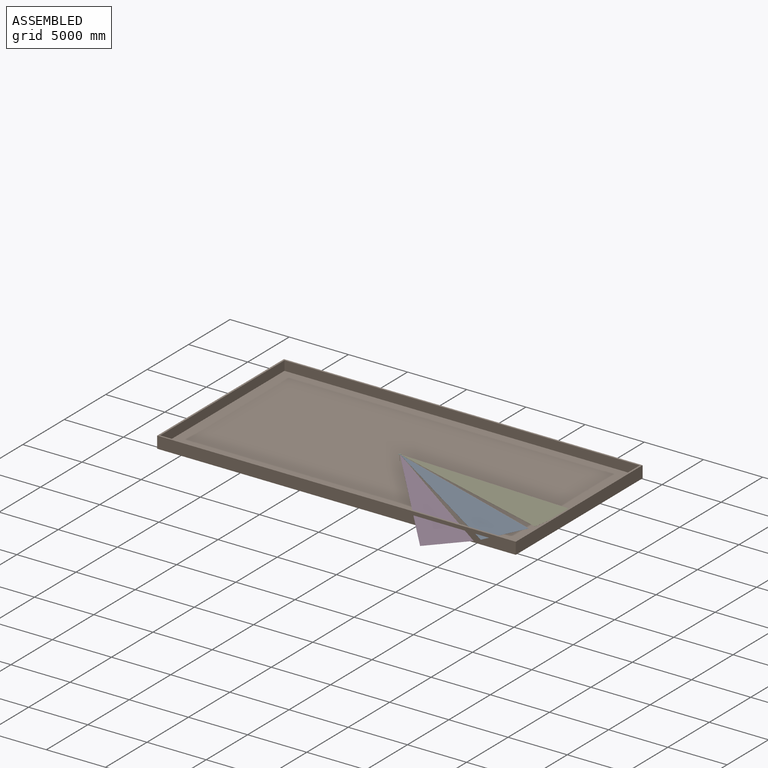
[diagram: assembled view]
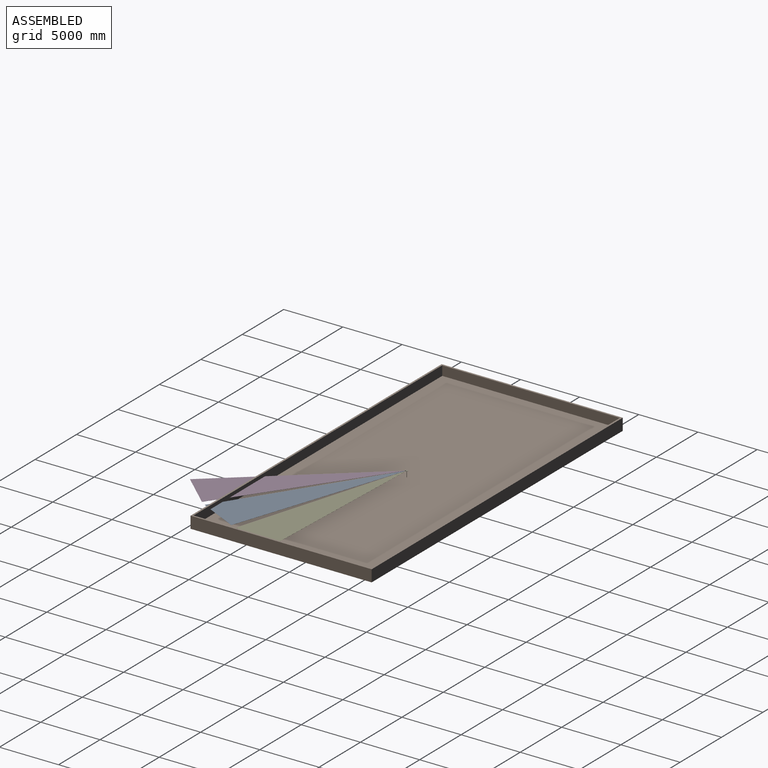
[diagram: assembled view, second angle]
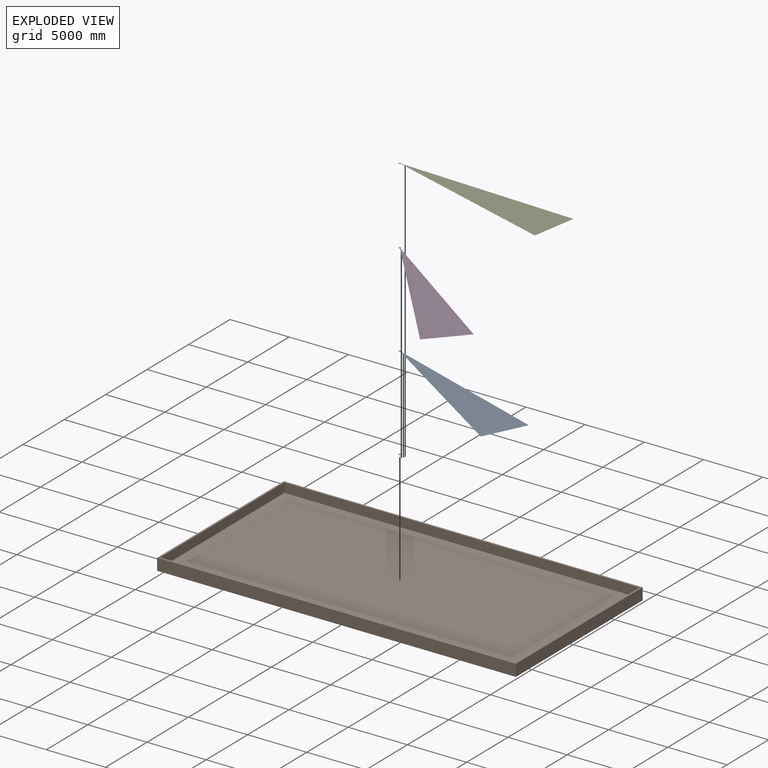
[diagram: exploded view]
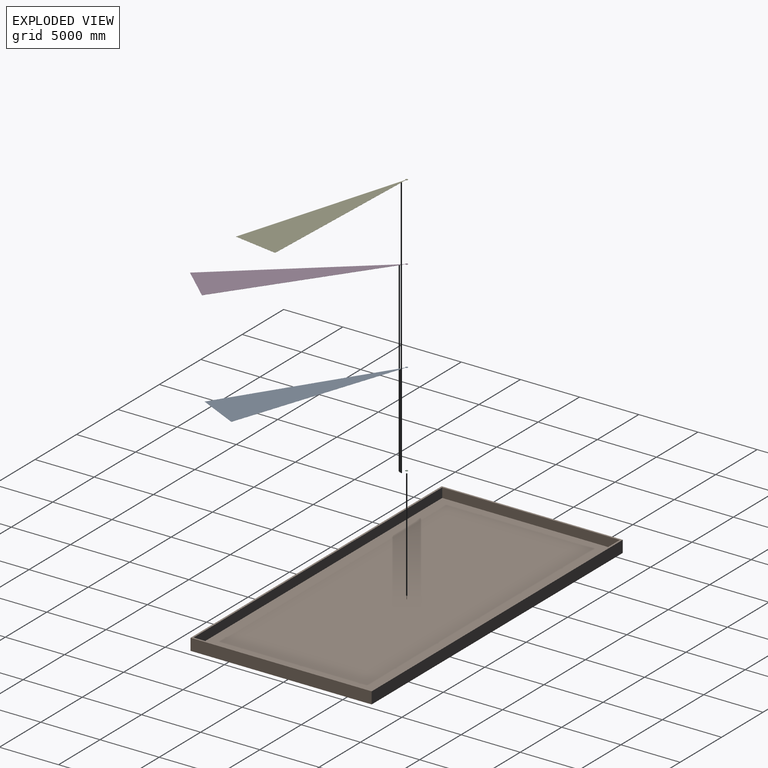
[diagram: exploded view, second angle]
ASSEMBLY  parts=5 mates=4
PART A: 19 faces, bbox 14371.4x8344x5 mm
  f0: plane 14209.56x4805.03mm, normal (0.32,0.95,0), area 75000mm2, adj f1,f15,f17,f18
  f1: cylinder r=60mm len=5mm, axis (0,0,-1), area 11.4mm2, adj f0,f2,f17,f18
  f2: plane 43.15x12.78mm, normal (-0.28,-0.96,0), area 225mm2, adj f1,f3,f17,f18
  f3: cylinder r=105mm len=210mm, axis (0,0,-1), area 2820.5mm2, adj f2,f4,f17,f18
  f4: plane 41.92x16.36mm, normal (0.93,0.36,0), area 225mm2, adj f3,f5,f17,f18
  f5: cylinder r=60mm len=5mm, axis (0,0,-1), area 11.4mm2, adj f4,f6,f17,f18
  f6: plane 41.27x17.94mm, normal (-0.92,-0.4,0), area 225mm2, adj f5,f7,f17,f18
  f7: cylinder r=105mm len=22.75mm, axis (0,0,-1), area 132.7mm2, adj f6,f8,f17,f18
  f8: plane 35.47x27.69mm, normal (0.79,0.62,0), area 225mm2, adj f7,f9,f17,f18
  f9: cylinder r=60mm len=5mm, axis (0,0,-1), area 11.4mm2, adj f8,f10,f17,f18
  f10: plane 34.39x29.03mm, normal (-0.76,-0.65,0), area 225mm2, adj f9,f11,f17,f18
  f11: cylinder r=105mm len=19.49mm, axis (0,0,-1), area 132.7mm2, adj f10,f12,f17,f18
  f12: plane 36.7x26.04mm, normal (0.58,0.82,0), area 225mm2, adj f11,f13,f17,f18
  f13: cylinder r=60mm len=5mm, axis (0,0,-1), area 11.4mm2, adj f12,f14,f17,f18
  f14: plane 12556.24x8206.15mm, normal (-0.55,-0.84,0), area 75000mm2, adj f13,f15,f17,f18
  f15: plane 3414.71x1659.93mm, normal (0.9,-0.44,0), area 18984mm2, adj f0,f14,f17,f18
  f16: cylinder r=12.5mm len=25mm, axis (0,0,-1), area 392.7mm2, adj f17,f18
  f17: plane 14371.4x8343.97mm, normal (0,0,1), area 28393999.6mm2, adj f0,f1,f2,f3,f4,f5,f6,f7
  f18: plane 14371.4x8343.97mm, normal (0,0,-1), area 28393999.6mm2, adj f0,f1,f2,f3,f4,f5,f6,f7
PART B: 13 faces, bbox 30300x15300x1000 mm
  f0: plane 30300x15300mm, normal (0,0,-1), area 463590000mm2, adj f5,f6,f7,f8
  f1: plane 30000x800mm, normal (0,1,0), area 24000000mm2, adj f2,f4,f9,f10
  f2: plane 15000x800mm, normal (-1,0,0), area 12000000mm2, adj f1,f3,f9,f10
  f3: plane 30000x800mm, normal (0,-1,0), area 24000000mm2, adj f2,f4,f9,f10
  f4: plane 15000x800mm, normal (1,0,0), area 12000000mm2, adj f1,f3,f9,f10
  f5: plane 15300x1000mm, normal (-1,0,0), area 15300000mm2, adj f0,f6,f8,f9
  f6: plane 30300x1000mm, normal (0,-1,0), area 30300000mm2, adj f0,f5,f7,f9
  f7: plane 15300x1000mm, normal (1,0,0), area 15300000mm2, adj f0,f6,f8,f9
  f8: plane 30300x1000mm, normal (0,1,0), area 30300000mm2, adj f0,f5,f7,f9
  f9: plane 30300x15300mm, normal (0,0,1), area 13590000mm2, adj f1,f2,f3,f4,f5,f6,f7,f8
  f10: plane 30000x15000mm, normal (0,0,1), area 449999509.1mm2, adj f1,f2,f3,f4,f11
  f11: cylinder r=12.5mm len=500mm, axis (0,0,-1), area 39269.9mm2, adj f10,f12
  f12: plane 25x25mm, normal (0,0,1), area 490.9mm2, adj f11
PART C: 20 faces, bbox 210x210x18 mm
  f0: plane 210x210mm, normal (0,0,1), area 33579.3mm2, adj f1,f2,f4,f5,f6,f8,f9,f10
  f1: cylinder r=12.5mm len=25mm, axis (0,0,-1), area 628.3mm2, adj f0,f3
  f2: cylinder r=105mm len=210mm, axis (0,0,-1), area 5437.9mm2, adj f0,f3,f4,f6,f7,f9,f10,f11
  f3: plane 210x210mm, normal (0,0,-1), area 34145.2mm2, adj f1,f2
  f4: plane 45x10mm, normal (0,1,0), area 450mm2, adj f0,f2,f5,f7
  f5: cylinder r=60mm len=10mm, axis (0,0,-1), area 22.9mm2, adj f0,f4,f6,f7
  f6: plane 44.97x10mm, normal (-0.04,-1,0), area 450mm2, adj f0,f2,f5,f7
  f7: plane 45.04x4mm, normal (0,0,1), area 141.5mm2, adj f2,f4,f5,f6
  f8: cylinder r=60mm len=10mm, axis (0,0,-1), area 22.9mm2, adj f0,f9,f10,f11
  f9: plane 42.59x14.54mm, normal (-0.32,-0.95,0), area 450mm2, adj f0,f2,f8,f11
  f10: plane 43.11x12.91mm, normal (0.29,0.96,0), area 450mm2, adj f0,f2,f8,f11
  f11: plane 43.81x16.72mm, normal (0,0,1), area 141.5mm2, adj f2,f8,f9,f10
  f12: cylinder r=60mm len=10mm, axis (0,0,-1), area 22.9mm2, adj f0,f13,f14,f15
  f13: plane 36.63x26.14mm, normal (-0.58,-0.81,0), area 450mm2, adj f0,f2,f12,f15
  f14: plane 37.6x24.73mm, normal (0.55,0.84,0), area 450mm2, adj f0,f2,f12,f15
  f15: plane 38.89x28.03mm, normal (0,0,1), area 141.5mm2, adj f2,f12,f13,f14
  f16: cylinder r=60mm len=10mm, axis (0,0,-1), area 22.9mm2, adj f0,f17,f18,f19
  f17: plane 35.55x27.59mm, normal (-0.79,-0.61,0), area 450mm2, adj f0,f2,f16,f19
  f18: plane 34.47x28.93mm, normal (0.77,0.64,0), area 450mm2, adj f0,f2,f16,f19
  f19: plane 36.98x30.7mm, normal (0,0,1), area 141.5mm2, adj f2,f16,f17,f18
PART D: 19 faces, bbox 12413.7x11585.1x5 mm
  f0: plane 12259.7x8642.9mm, normal (0.58,0.82,0), area 75000mm2, adj f1,f15,f17,f18
  f1: cylinder r=60mm len=5mm, axis (0,0,-1), area 11.4mm2, adj f0,f2,f17,f18
  f2: plane 37.74x24.51mm, normal (-0.54,-0.84,0), area 225mm2, adj f1,f3,f17,f18
  f3: cylinder r=105mm len=210mm, axis (0,0,-1), area 2820.5mm2, adj f2,f4,f17,f18
  f4: plane 44.84x5mm, normal (1,0.08,0), area 225mm2, adj f3,f5,f17,f18
  f5: cylinder r=60mm len=5mm, axis (0,0,-1), area 11.4mm2, adj f4,f6,f17,f18
  f6: plane 44.66x5.48mm, normal (-0.99,-0.12,0), area 225mm2, adj f5,f7,f17,f18
  f7: cylinder r=105mm len=25.66mm, axis (0,0,-1), area 132.7mm2, adj f6,f8,f17,f18
  f8: plane 41.87x16.48mm, normal (0.93,0.37,0), area 225mm2, adj f7,f9,f17,f18
  f9: cylinder r=60mm len=5mm, axis (0,0,-1), area 11.4mm2, adj f8,f10,f17,f18
  f10: plane 41.22x18.06mm, normal (-0.92,-0.4,0), area 225mm2, adj f9,f11,f17,f18
  f11: cylinder r=105mm len=22.71mm, axis (0,0,-1), area 132.7mm2, adj f10,f12,f17,f18
  f12: plane 35.39x27.8mm, normal (0.79,0.62,0), area 225mm2, adj f11,f13,f17,f18
  f13: cylinder r=60mm len=5mm, axis (0,0,-1), area 11.4mm2, adj f12,f14,f17,f18
  f14: plane 11434.38x9708.5mm, normal (-0.76,-0.65,0), area 75000mm2, adj f13,f15,f17,f18
  f15: plane 2802.65x2561.41mm, normal (0.74,-0.67,0), area 18984mm2, adj f0,f14,f17,f18
  f16: cylinder r=12.5mm len=25mm, axis (0,0,-1), area 392.7mm2, adj f17,f18
  f17: plane 12413.74x11585.12mm, normal (0,0,1), area 28393999.6mm2, adj f0,f1,f2,f3,f4,f5,f6,f7
  f18: plane 12413.74x11585.12mm, normal (0,0,-1), area 28393999.6mm2, adj f0,f1,f2,f3,f4,f5,f6,f7
PART E: 19 faces, bbox 15154.1x4424.3x5 mm
  f0: plane 14989.11x571.43mm, normal (0.04,1,0), area 75000mm2, adj f1,f15,f17,f18
  f1: cylinder r=60mm len=5mm, axis (0,0,-1), area 11.4mm2, adj f0,f2,f17,f18
  f2: plane 45x5mm, normal (0,-1,0), area 225mm2, adj f1,f3,f17,f18
  f3: cylinder r=105mm len=210mm, axis (0,0,-1), area 2820.5mm2, adj f2,f4,f17,f18
  f4: plane 35.55x27.59mm, normal (0.79,0.61,0), area 225mm2, adj f3,f5,f17,f18
  f5: cylinder r=60mm len=5mm, axis (0,0,-1), area 11.4mm2, adj f4,f6,f17,f18
  f6: plane 34.47x28.93mm, normal (-0.77,-0.64,0), area 225mm2, adj f5,f7,f17,f18
  f7: cylinder r=105mm len=19.44mm, axis (0,0,-1), area 132.7mm2, adj f6,f8,f17,f18
  f8: plane 36.63x26.14mm, normal (0.58,0.81,0), area 225mm2, adj f7,f9,f17,f18
  f9: cylinder r=60mm len=5mm, axis (0,0,-1), area 11.4mm2, adj f8,f10,f17,f18
  f10: plane 37.6x24.73mm, normal (-0.55,-0.84,0), area 225mm2, adj f9,f11,f17,f18
  f11: cylinder r=105mm len=23.77mm, axis (0,0,-1), area 132.7mm2, adj f10,f12,f17,f18
  f12: plane 42.59x14.54mm, normal (0.32,0.95,0), area 225mm2, adj f11,f13,f17,f18
  f13: cylinder r=60mm len=5mm, axis (0,0,-1), area 11.4mm2, adj f12,f14,f17,f18
  f14: plane 14369.84x4302.05mm, normal (-0.29,-0.96,0), area 75000mm2, adj f13,f15,f17,f18
  f15: plane 3745.54x621.75mm, normal (0.99,-0.16,0), area 18984mm2, adj f0,f14,f17,f18
  f16: cylinder r=12.5mm len=25mm, axis (0,0,-1), area 392.7mm2, adj f17,f18
  f17: plane 15154.07x4424.26mm, normal (0,0,1), area 28393999.5mm2, adj f0,f1,f2,f3,f4,f5,f6,f7
  f18: plane 15154.07x4424.26mm, normal (0,0,-1), area 28393999.5mm2, adj f0,f1,f2,f3,f4,f5,f6,f7
PLACE A t=(286.87,104.56,95.4)mm
PLACE B t=(286.87,104.56,-591.6)mm fixed
PLACE C t=(286.87,104.56,100.4)mm
PLACE D t=(286.87,104.56,95.4)mm
PLACE E t=(286.87,104.56,95.4)mm
MATE revolute E.f16 <-> D.f16  axis (0,0,1) through (286.87,104.56,108.4)mm
MATE revolute C.f1 <-> A.f16  axis (0,0,1) through (286.87,104.56,108.4)mm
MATE revolute E.f16 <-> A.f3  axis (0,0,1) through (286.87,104.56,108.4)mm
MATE revolute C.f1 <-> B.f11  axis (0,0,1) through (286.87,104.56,108.4)mm
